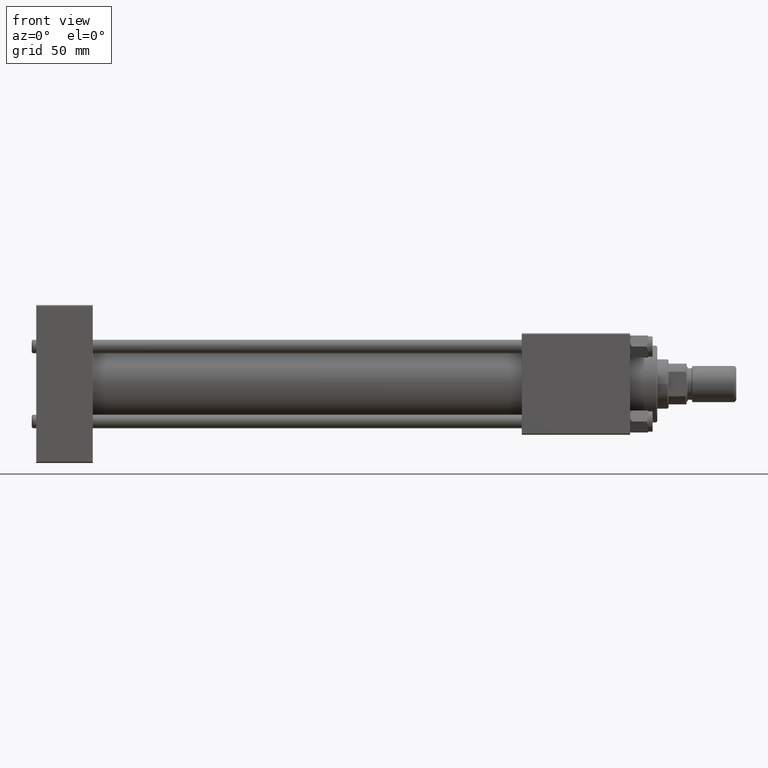
[diagram: clean part render]
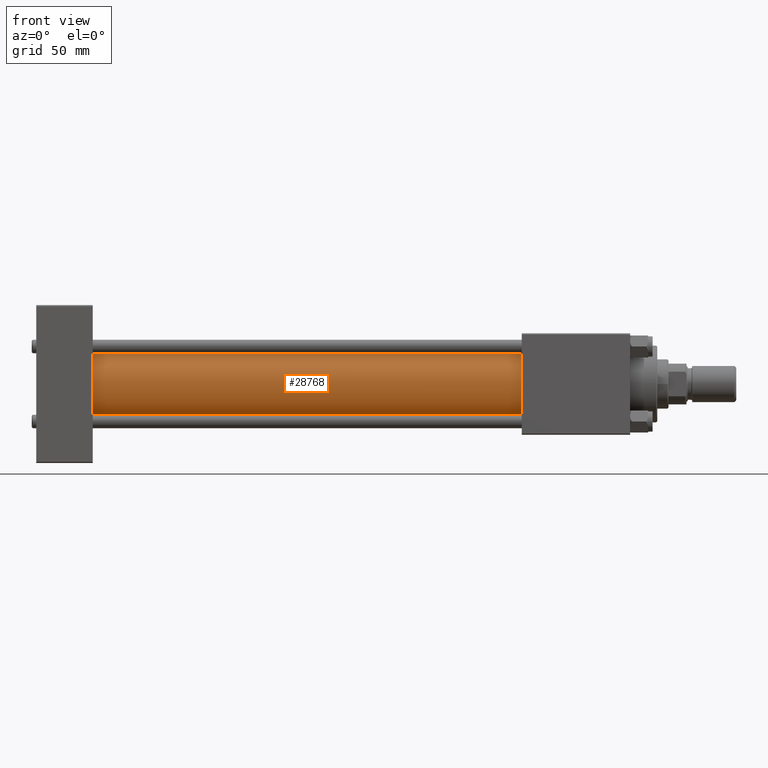
[diagram: same view with one face highlighted and labeled with its STEP entity id]
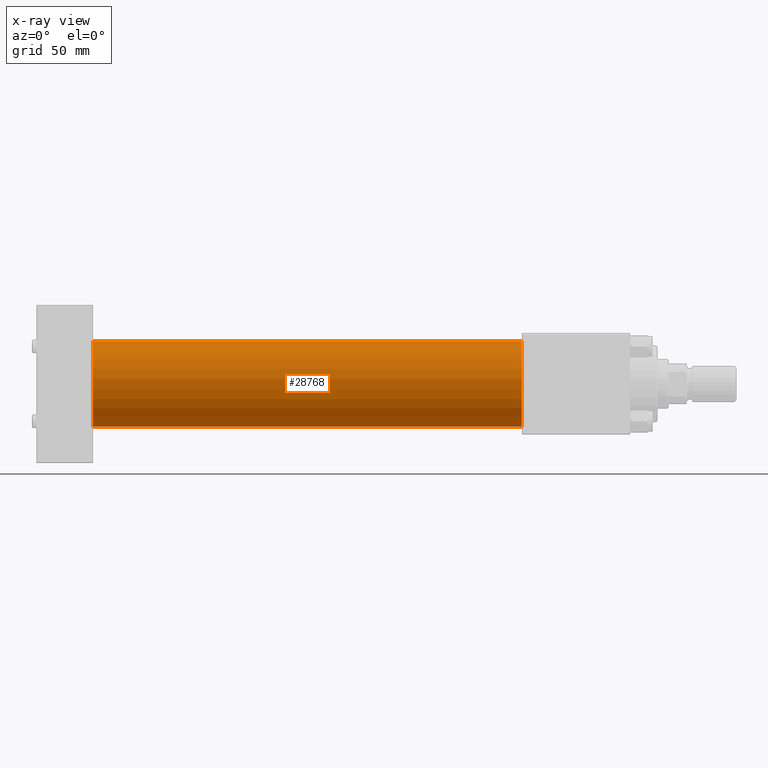
[diagram: x-ray of the same camera — body ghosted, the highlighted face saturated]
A machine part, front view. The second image highlights one B-rep face of the part: STEP entity #28768.
The next image is the same camera in x-ray: the body ghosted, the highlighted face saturated — about 0% of this face is hidden behind the body in this view.
In plain terms, the highlighted cylindrical surface (partial cylindrical patch) has radius 19 mm, axis along (-1, -0, -0).
Its self-contained STEP definition (entity closure, byte-faithful):
#1703 = CIRCLE ( 'NONE', #44055, 19.00000000000000000 ) ;
#2275 = ORIENTED_EDGE ( 'NONE', *, *, #21541, .F. ) ;
#2806 = CYLINDRICAL_SURFACE ( 'NONE', #11296, 19.00000000000000000 ) ;
#4161 = CARTESIAN_POINT ( 'NONE',  ( 215.0000000000000000, -2.752562955852396712E-16, -19.00000000000000000 ) ) ;
#4490 = CARTESIAN_POINT ( 'NONE',  ( 24.99999999999999289, -2.602085213965210642E-15, 19.00000000000000000 ) ) ;
#5936 = CARTESIAN_POINT ( 'NONE',  ( 215.0000000000000000, -2.752562955852396712E-16, -19.00000000000000000 ) ) ;
#6508 = DIRECTION ( 'NONE',  ( 0.000000000000000000, 0.000000000000000000, 1.000000000000000000 ) ) ;
#7952 = CARTESIAN_POINT ( 'NONE',  ( 215.0000000000000000, -2.602085213965210642E-15, 19.00000000000000000 ) ) ;
#9946 = ORIENTED_EDGE ( 'NONE', *, *, #20696, .T. ) ;
#11296 = AXIS2_PLACEMENT_3D ( 'NONE', #22434, #34895, #6508 ) ;
#20696 = EDGE_CURVE ( 'NONE', #37728, #43984, #1703, .T. ) ;
#21541 = EDGE_CURVE ( 'NONE', #48782, #30766, #36475, .T. ) ;
#22434 = CARTESIAN_POINT ( 'NONE',  ( 215.0000000000000000, -2.602085213965210642E-15, 0.000000000000000000 ) ) ;
#26940 = FACE_OUTER_BOUND ( 'NONE', #42756, .T. ) ;
#26945 = VECTOR ( 'NONE', #35034, 1000.000000000000000 ) ;
#28768 = ADVANCED_FACE ( 'NONE', ( #26940 ), #2806, .T. ) ;
#30766 = VERTEX_POINT ( 'NONE', #5936 ) ;
#31266 = CARTESIAN_POINT ( 'NONE',  ( 24.99999999999999289, -2.602085213965210642E-15, 0.000000000000000000 ) ) ;
#33378 = CARTESIAN_POINT ( 'NONE',  ( 24.99999999999999289, -2.752562955852396712E-16, -19.00000000000000000 ) ) ;
#34895 = DIRECTION ( 'NONE',  ( -1.000000000000000000, -0.000000000000000000, -0.000000000000000000 ) ) ;
#35034 = DIRECTION ( 'NONE',  ( -1.000000000000000000, -0.000000000000000000, -0.000000000000000000 ) ) ;
#35811 = LINE ( 'NONE', #7952, #26945 ) ;
#36475 = CIRCLE ( 'NONE', #47473, 19.00000000000000000 ) ;
#37341 = DIRECTION ( 'NONE',  ( 1.000000000000000000, 0.000000000000000000, 0.000000000000000000 ) ) ;
#37594 = DIRECTION ( 'NONE',  ( 0.000000000000000000, 0.000000000000000000, -1.000000000000000000 ) ) ;
#37728 = VERTEX_POINT ( 'NONE', #4490 ) ;
#39145 = ORIENTED_EDGE ( 'NONE', *, *, #46932, .F. ) ;
#40330 = VECTOR ( 'NONE', #49238, 1000.000000000000000 ) ;
#40475 = LINE ( 'NONE', #4161, #40330 ) ;
#41834 = CARTESIAN_POINT ( 'NONE',  ( 215.0000000000000000, -2.602085213965210642E-15, 0.000000000000000000 ) ) ;
#42674 = DIRECTION ( 'NONE',  ( 1.000000000000000000, -0.000000000000000000, 0.000000000000000000 ) ) ;
#42756 = EDGE_LOOP ( 'NONE', ( #39145, #2275, #44017, #9946 ) ) ;
#43984 = VERTEX_POINT ( 'NONE', #33378 ) ;
#44017 = ORIENTED_EDGE ( 'NONE', *, *, #51488, .T. ) ;
#44055 = AXIS2_PLACEMENT_3D ( 'NONE', #31266, #42674, #47444 ) ;
#46932 = EDGE_CURVE ( 'NONE', #30766, #43984, #40475, .T. ) ;
#47255 = CARTESIAN_POINT ( 'NONE',  ( 215.0000000000000000, -2.602085213965210642E-15, 19.00000000000000000 ) ) ;
#47444 = DIRECTION ( 'NONE',  ( 0.000000000000000000, 0.000000000000000000, 1.000000000000000000 ) ) ;
#47473 = AXIS2_PLACEMENT_3D ( 'NONE', #41834, #37341, #37594 ) ;
#48782 = VERTEX_POINT ( 'NONE', #47255 ) ;
#49238 = DIRECTION ( 'NONE',  ( -1.000000000000000000, -0.000000000000000000, -0.000000000000000000 ) ) ;
#51488 = EDGE_CURVE ( 'NONE', #48782, #37728, #35811, .T. ) ;